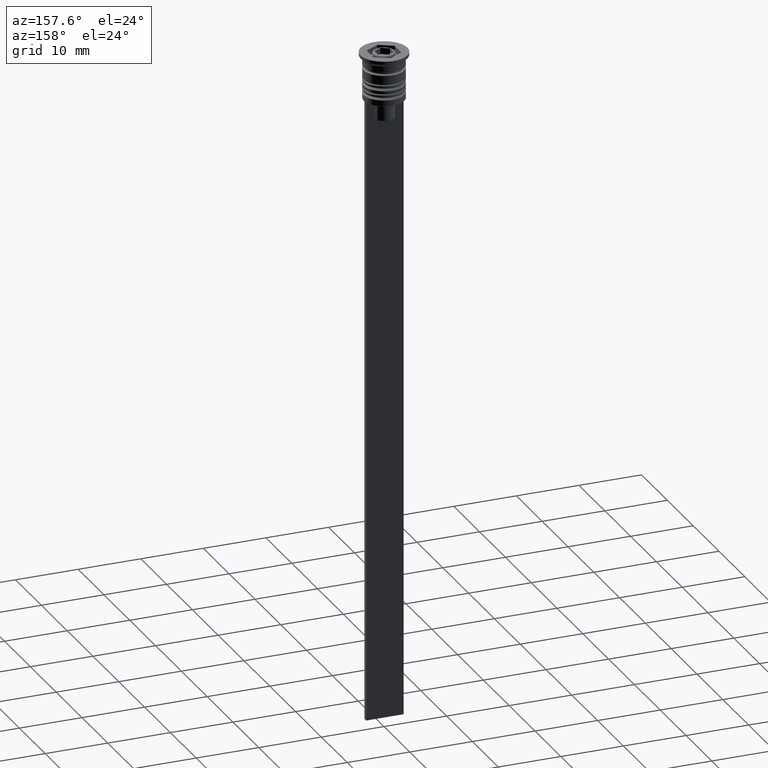
[diagram: clean part render]
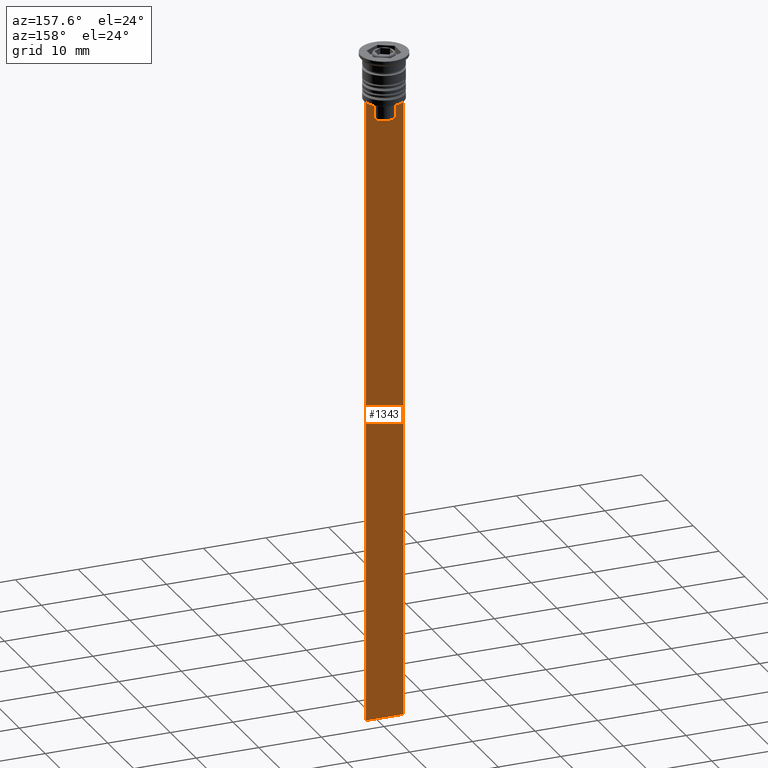
[diagram: same view with one face highlighted and labeled with its STEP entity id]
A machine part, auxiliary view. The second image highlights one B-rep face of the part: STEP entity #1343.
In plain terms, the highlighted planar face has unit normal (0, -1, -0).
Its self-contained STEP definition (entity closure, byte-faithful):
#41 = VERTEX_POINT ( 'NONE', #48 ) ;
#43 = EDGE_CURVE ( 'NONE', #1284, #41, #1147, .T. ) ;
#48 = CARTESIAN_POINT ( 'NONE',  ( -1.612451549659713601, 0.3500000000000000333, -8.000000000000000000 ) ) ;
#51 = CARTESIAN_POINT ( 'NONE',  ( 2.999999999999995559, 0.3500000000000000333, -107.5000000000000000 ) ) ;
#92 = ORIENTED_EDGE ( 'NONE', *, *, #476, .F. ) ;
#112 = VERTEX_POINT ( 'NONE', #1270 ) ;
#168 = CARTESIAN_POINT ( 'NONE',  ( 1.612451549659713601, 0.3500000000000000333, -8.000000000000000000 ) ) ;
#169 = EDGE_CURVE ( 'NONE', #1117, #1284, #934, .T. ) ;
#196 = DIRECTION ( 'NONE',  ( 1.000000000000000000, 0.000000000000000000, 0.000000000000000000 ) ) ;
#217 = B_SPLINE_CURVE_WITH_KNOTS ( 'NONE', 3,
 ( #1137, #608, #980, #1276 ),
 .UNSPECIFIED., .F., .F.,
 ( 4, 4 ),
 ( 0.008600796474521226961, 0.009317962624906524910 ),
 .UNSPECIFIED. ) ;
#246 = CARTESIAN_POINT ( 'NONE',  ( -1.612451549659713601, 0.3500000000000000333, 0.000000000000000000 ) ) ;
#250 = DIRECTION ( 'NONE',  ( 0.000000000000000000, 0.000000000000000000, -1.000000000000000000 ) ) ;
#272 = CARTESIAN_POINT ( 'NONE',  ( -2.121320343559647270, 0.3500000000000000333, -7.500000000000000000 ) ) ;
#278 = DIRECTION ( 'NONE',  ( -1.000000000000000000, 0.000000000000000000, 0.000000000000000000 ) ) ;
#291 = VECTOR ( 'NONE', #196, 1000.000000000000000 ) ;
#296 = FACE_OUTER_BOUND ( 'NONE', #1773, .T. ) ;
#348 = EDGE_CURVE ( 'NONE', #112, #1993, #648, .T. ) ;
#350 = VERTEX_POINT ( 'NONE', #168 ) ;
#377 = VECTOR ( 'NONE', #278, 1000.000000000000000 ) ;
#384 = CARTESIAN_POINT ( 'NONE',  ( -1.782527878033863589, 0.3500000000000000333, -7.833794036819862860 ) ) ;
#407 = CARTESIAN_POINT ( 'NONE',  ( -1.612451549659713601, 0.3500000000000000333, -8.000000000000000000 ) ) ;
#419 = VECTOR ( 'NONE', #1151, 1000.000000000000000 ) ;
#442 = LINE ( 'NONE', #1807, #419 ) ;
#451 = PLANE ( 'NONE',  #969 ) ;
#467 = CARTESIAN_POINT ( 'NONE',  ( 2.999999999999995559, 0.3500000000000000333, -1.459304675784417915 ) ) ;
#476 = EDGE_CURVE ( 'NONE', #1117, #539, #1881, .T. ) ;
#486 = VECTOR ( 'NONE', #640, 1000.000000000000000 ) ;
#539 = VERTEX_POINT ( 'NONE', #2120 ) ;
#578 = EDGE_CURVE ( 'NONE', #1993, #539, #1631, .T. ) ;
#608 = CARTESIAN_POINT ( 'NONE',  ( 1.782523989086206795, 0.3500000000000000333, -7.833797837268088315 ) ) ;
#624 = DIRECTION ( 'NONE',  ( 1.000000000000000000, 0.000000000000000000, 0.000000000000000000 ) ) ;
#640 = DIRECTION ( 'NONE',  ( 0.000000000000000000, 0.000000000000000000, -1.000000000000000000 ) ) ;
#648 = LINE ( 'NONE', #1990, #486 ) ;
#716 = DIRECTION ( 'NONE',  ( -0.000000000000000000, -0.000000000000000000, 1.000000000000000000 ) ) ;
#731 = ORIENTED_EDGE ( 'NONE', *, *, #1093, .T. ) ;
#741 = LINE ( 'NONE', #246, #1836 ) ;
#743 = CARTESIAN_POINT ( 'NONE',  ( 2.999999999999995559, 0.3500000000000000333, -7.500000000000000000 ) ) ;
#780 = CARTESIAN_POINT ( 'NONE',  ( 2.999999999999995559, 0.3500000000000000333, -107.5000000000000000 ) ) ;
#842 = ORIENTED_EDGE ( 'NONE', *, *, #169, .T. ) ;
#879 = CARTESIAN_POINT ( 'NONE',  ( -1.952043732028445167, 0.3500000000000000333, -7.667018567316270961 ) ) ;
#906 = ORIENTED_EDGE ( 'NONE', *, *, #1517, .T. ) ;
#921 = DIRECTION ( 'NONE',  ( 0.000000000000000000, 0.000000000000000000, -1.000000000000000000 ) ) ;
#934 = LINE ( 'NONE', #743, #2146 ) ;
#969 = AXIS2_PLACEMENT_3D ( 'NONE', #467, #1127, #250 ) ;
#976 = ORIENTED_EDGE ( 'NONE', *, *, #1725, .T. ) ;
#980 = CARTESIAN_POINT ( 'NONE',  ( 1.952040775369266346, 0.3500000000000000333, -7.667021484535463394 ) ) ;
#988 = CARTESIAN_POINT ( 'NONE',  ( 2.121320343559647270, 0.3500000000000000333, -7.500000000000000000 ) ) ;
#992 = EDGE_CURVE ( 'NONE', #350, #1448, #217, .T. ) ;
#1017 = CARTESIAN_POINT ( 'NONE',  ( 1.612451549659713601, 0.3500000000000000333, 0.000000000000000000 ) ) ;
#1035 = ORIENTED_EDGE ( 'NONE', *, *, #2015, .T. ) ;
#1050 = LINE ( 'NONE', #1017, #1546 ) ;
#1093 = EDGE_CURVE ( 'NONE', #1448, #112, #442, .T. ) ;
#1117 = VERTEX_POINT ( 'NONE', #1985 ) ;
#1127 = DIRECTION ( 'NONE',  ( 0.000000000000000000, -1.000000000000000000, -0.000000000000000000 ) ) ;
#1128 = ORIENTED_EDGE ( 'NONE', *, *, #43, .T. ) ;
#1137 = CARTESIAN_POINT ( 'NONE',  ( 1.612451549659713601, 0.3500000000000000333, -8.000000000000000000 ) ) ;
#1147 = B_SPLINE_CURVE_WITH_KNOTS ( 'NONE', 3,
 ( #1206, #879, #384, #407 ),
 .UNSPECIFIED., .F., .F.,
 ( 4, 4 ),
 ( 0.003684653461239336628, 0.004398058763641255961 ),
 .UNSPECIFIED. ) ;
#1151 = DIRECTION ( 'NONE',  ( 1.000000000000000000, 0.000000000000000000, 0.000000000000000000 ) ) ;
#1206 = CARTESIAN_POINT ( 'NONE',  ( -2.121320343559647270, 0.3500000000000000333, -7.500000000000000000 ) ) ;
#1232 = CARTESIAN_POINT ( 'NONE',  ( -3.000000000000004441, 0.3500000000000000333, -1.459304675784417915 ) ) ;
#1270 = CARTESIAN_POINT ( 'NONE',  ( 2.999999999999995559, 0.3500000000000000333, -7.500000000000000000 ) ) ;
#1276 = CARTESIAN_POINT ( 'NONE',  ( 2.121320343559647270, 0.3500000000000000333, -7.500000000000000000 ) ) ;
#1284 = VERTEX_POINT ( 'NONE', #272 ) ;
#1343 = ADVANCED_FACE ( 'NONE', ( #296 ), #451, .F. ) ;
#1387 = CARTESIAN_POINT ( 'NONE',  ( 0.000000000000000000, 0.3500000000000000333, -10.49999999999999822 ) ) ;
#1435 = VECTOR ( 'NONE', #1573, 1000.000000000000000 ) ;
#1443 = CARTESIAN_POINT ( 'NONE',  ( 1.612451549659713601, 0.3500000000000000333, -10.49999999999999822 ) ) ;
#1448 = VERTEX_POINT ( 'NONE', #988 ) ;
#1517 = EDGE_CURVE ( 'NONE', #1623, #350, #1050, .T. ) ;
#1546 = VECTOR ( 'NONE', #716, 1000.000000000000000 ) ;
#1569 = ORIENTED_EDGE ( 'NONE', *, *, #992, .T. ) ;
#1573 = DIRECTION ( 'NONE',  ( 0.000000000000000000, 0.000000000000000000, -1.000000000000000000 ) ) ;
#1623 = VERTEX_POINT ( 'NONE', #1443 ) ;
#1631 = LINE ( 'NONE', #780, #377 ) ;
#1640 = ORIENTED_EDGE ( 'NONE', *, *, #578, .T. ) ;
#1725 = EDGE_CURVE ( 'NONE', #41, #1833, #741, .T. ) ;
#1773 = EDGE_LOOP ( 'NONE', ( #842, #1128, #976, #1035, #906, #1569, #731, #1941, #1640, #92 ) ) ;
#1807 = CARTESIAN_POINT ( 'NONE',  ( 2.999999999999995559, 0.3500000000000000333, -7.500000000000000000 ) ) ;
#1833 = VERTEX_POINT ( 'NONE', #1844 ) ;
#1836 = VECTOR ( 'NONE', #921, 1000.000000000000000 ) ;
#1844 = CARTESIAN_POINT ( 'NONE',  ( -1.612451549659713601, 0.3500000000000000333, -10.49999999999999822 ) ) ;
#1881 = LINE ( 'NONE', #1232, #1435 ) ;
#1941 = ORIENTED_EDGE ( 'NONE', *, *, #348, .T. ) ;
#1985 = CARTESIAN_POINT ( 'NONE',  ( -3.000000000000004441, 0.3499999999999999223, -7.500000000000000000 ) ) ;
#1990 = CARTESIAN_POINT ( 'NONE',  ( 2.999999999999995559, 0.3500000000000000333, -1.459304675784417915 ) ) ;
#1993 = VERTEX_POINT ( 'NONE', #51 ) ;
#2015 = EDGE_CURVE ( 'NONE', #1833, #1623, #2033, .T. ) ;
#2033 = LINE ( 'NONE', #1387, #291 ) ;
#2120 = CARTESIAN_POINT ( 'NONE',  ( -3.000000000000004441, 0.3500000000000000333, -107.5000000000000000 ) ) ;
#2146 = VECTOR ( 'NONE', #624, 1000.000000000000000 ) ;